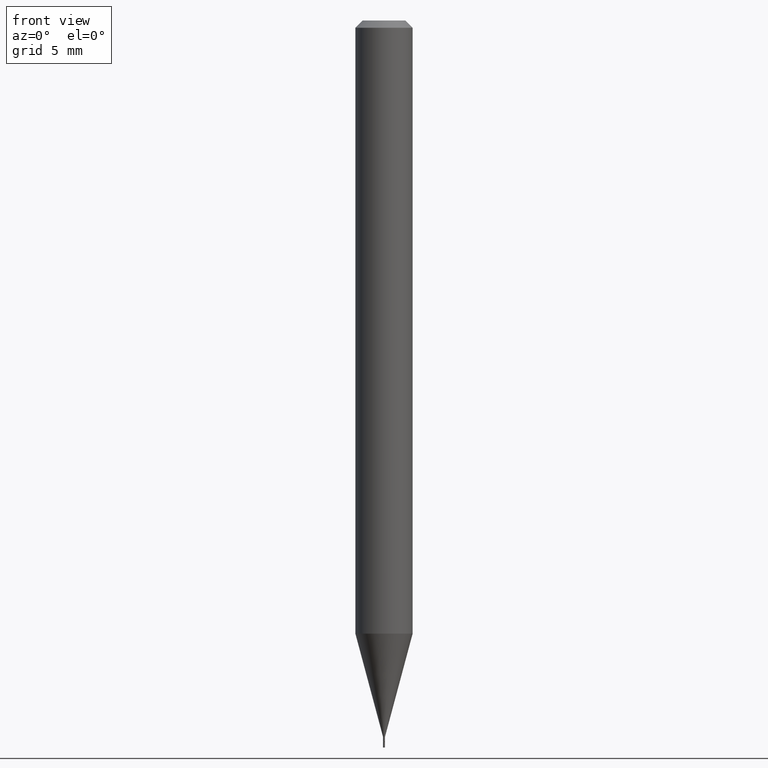
[diagram: clean part render]
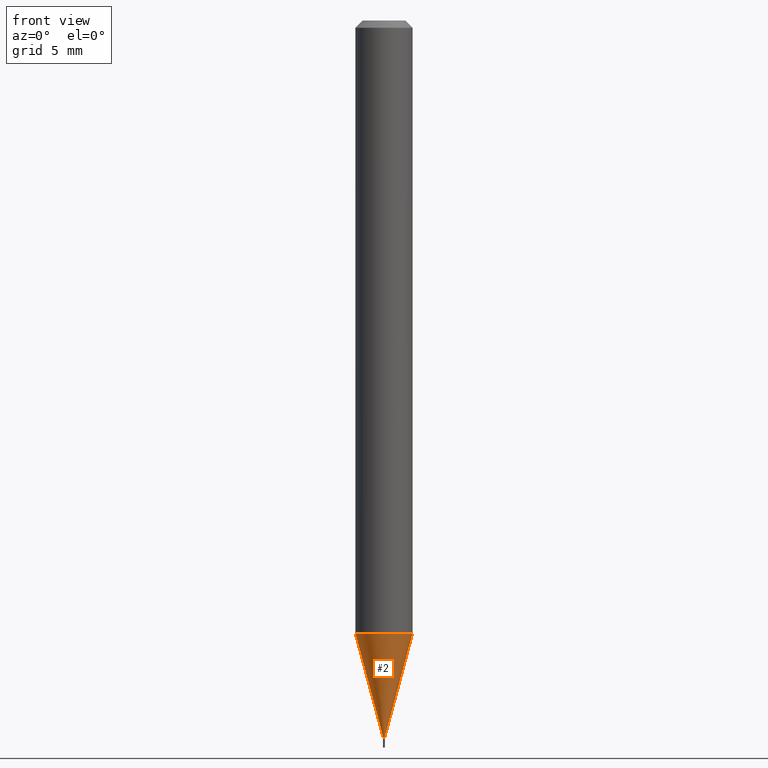
[diagram: same view with one face highlighted and labeled with its STEP entity id]
A machine part, front view. The second image highlights one B-rep face of the part: STEP entity #2.
In plain terms, the highlighted conical surface has half-angle 15 deg.
Its self-contained STEP definition (entity closure, byte-faithful):
#1 = CARTESIAN_POINT ( 'NONE',  ( 0.05904999999999999138, -4.829416634856539437E-15, -1.265099898887817487 ) ) ;
#2 = ADVANCED_FACE ( 'NONE', ( #173 ), #373, .T. ) ;
#5 = EDGE_CURVE ( 'NONE', #347, #369, #342, .T. ) ;
#13 = CARTESIAN_POINT ( 'NONE',  ( 3.093762339438127959E-29, -4.417072688739165306E-15, -1.265099898887817487 ) ) ;
#17 = DIRECTION ( 'NONE',  ( -2.445468806185136597E-29, 3.491481338843145583E-15, 1.000000000000000000 ) ) ;
#20 = DIRECTION ( 'NONE',  ( 1.000000000000000000, -6.982962677686435527E-15, 0.000000000000000000 ) ) ;
#21 = DIRECTION ( 'NONE',  ( 0.2588190451025213501, 1.565188264969621968E-15, 0.9659258262890682012 ) ) ;
#38 = VECTOR ( 'NONE', #310, 39.37007874015747433 ) ;
#42 = CARTESIAN_POINT ( 'NONE',  ( -0.001949999999999922715, -4.572374667501720637E-15, -1.478200000000000180 ) ) ;
#46 = DIRECTION ( 'NONE',  ( 1.000000000000000000, -6.982962677686273021E-15, 0.000000000000000000 ) ) ;
#49 = DIRECTION ( 'NONE',  ( -2.445468806185136597E-29, 3.491481338843145583E-15, 1.000000000000000000 ) ) ;
#60 = ORIENTED_EDGE ( 'NONE', *, *, #439, .T. ) ;
#65 = CARTESIAN_POINT ( 'NONE',  ( -0.05904999999999999138, -3.997497203272825813E-15, -1.265099898887817487 ) ) ;
#86 = CARTESIAN_POINT ( 'NONE',  ( 0.001949999999999922715, -5.174724492299425982E-15, -1.478200000000000180 ) ) ;
#91 = DIRECTION ( 'NONE',  ( 1.000000000000000000, -6.982962677686435527E-15, 0.000000000000000000 ) ) ;
#98 = CARTESIAN_POINT ( 'NONE',  ( -0.001949999999999922715, -5.147252131730616249E-15, -1.478200000000000180 ) ) ;
#107 = EDGE_CURVE ( 'NONE', #462, #369, #415, .T. ) ;
#128 = AXIS2_PLACEMENT_3D ( 'NONE', #13, #333, #46 ) ;
#152 = EDGE_LOOP ( 'NONE', ( #450, #60, #241, #378 ) ) ;
#163 = EDGE_CURVE ( 'NONE', #398, #347, #269, .T. ) ;
#173 = FACE_OUTER_BOUND ( 'NONE', #152, .T. ) ;
#177 = VECTOR ( 'NONE', #21, 39.37007874015747433 ) ;
#223 = CIRCLE ( 'NONE', #237, 0.001949999999999922715 ) ;
#237 = AXIS2_PLACEMENT_3D ( 'NONE', #336, #17, #20 ) ;
#241 = ORIENTED_EDGE ( 'NONE', *, *, #107, .T. ) ;
#269 = LINE ( 'NONE', #98, #38 ) ;
#310 = DIRECTION ( 'NONE',  ( -0.2588190451025213501, 5.211531920934551042E-15, 0.9659258262890682012 ) ) ;
#333 = DIRECTION ( 'NONE',  ( -2.445468806185136597E-29, 3.491481338843145583E-15, 1.000000000000000000 ) ) ;
#335 = CARTESIAN_POINT ( 'NONE',  ( 0.001949999999999922715, -5.174724492299425982E-15, -1.478200000000000180 ) ) ;
#336 = CARTESIAN_POINT ( 'NONE',  ( 3.614891989302869289E-29, -5.161107715077938255E-15, -1.478200000000000180 ) ) ;
#342 = CIRCLE ( 'NONE', #128, 0.05904999999999999832 ) ;
#343 = AXIS2_PLACEMENT_3D ( 'NONE', #417, #49, #91 ) ;
#347 = VERTEX_POINT ( 'NONE', #65 ) ;
#369 = VERTEX_POINT ( 'NONE', #1 ) ;
#373 = CONICAL_SURFACE ( 'NONE', #343, 0.001949999999999922715, 0.2617993877991500740 ) ;
#378 = ORIENTED_EDGE ( 'NONE', *, *, #5, .F. ) ;
#398 = VERTEX_POINT ( 'NONE', #42 ) ;
#415 = LINE ( 'NONE', #335, #177 ) ;
#417 = CARTESIAN_POINT ( 'NONE',  ( 3.614891989302869289E-29, -5.161107715077938255E-15, -1.478200000000000180 ) ) ;
#439 = EDGE_CURVE ( 'NONE', #398, #462, #223, .T. ) ;
#450 = ORIENTED_EDGE ( 'NONE', *, *, #163, .F. ) ;
#462 = VERTEX_POINT ( 'NONE', #86 ) ;